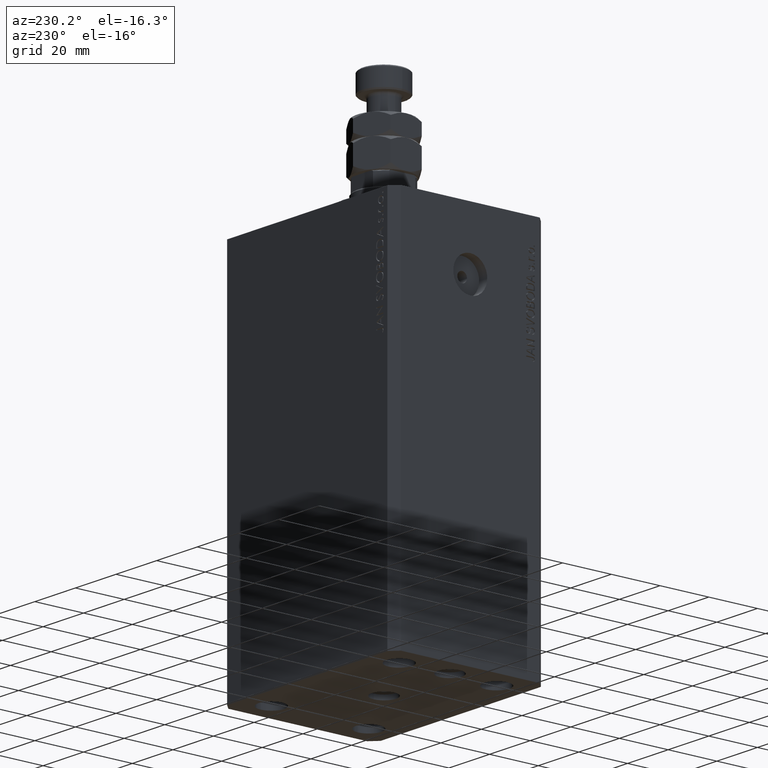
[diagram: clean part render]
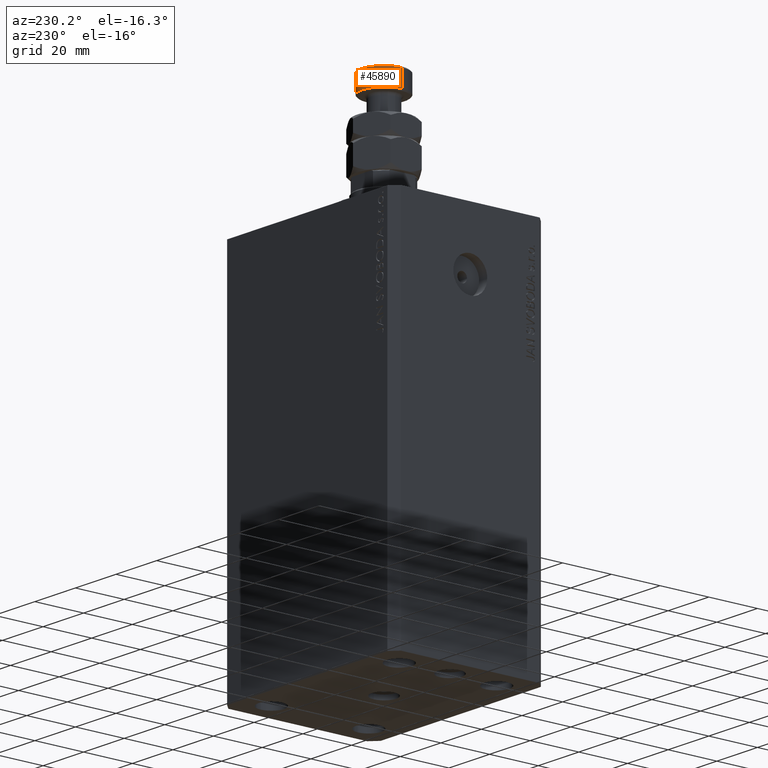
[diagram: same view with one face highlighted and labeled with its STEP entity id]
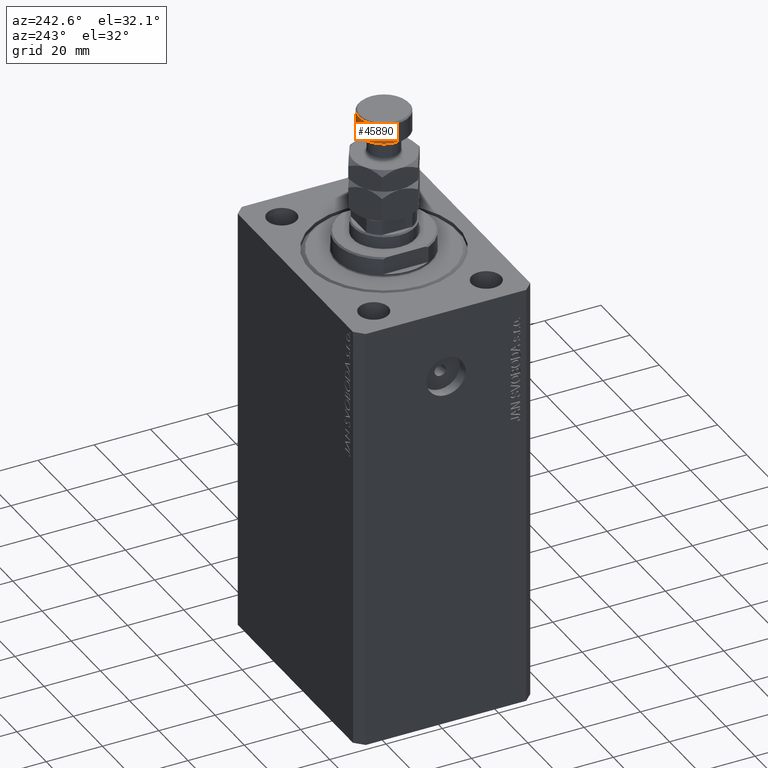
[diagram: same view with one face highlighted and labeled with its STEP entity id]
A machine part, auxiliary view. The second image highlights one B-rep face of the part: STEP entity #45890.
A second angle (auxiliary view) of the same face is appended — the face is thin or edge-on in the first view.
In plain terms, the highlighted cylindrical surface (edge-blend (fillet) strip) has radius 9 mm, axis along (-0, -0, -1).
Its self-contained STEP definition (entity closure, byte-faithful):
#638 = VECTOR ( 'NONE', #30961, 1000.000000000000000 ) ;
#3254 = CARTESIAN_POINT ( 'NONE',  ( -9.000000000000000000, 0.000000000000000000, 27.50000000000000000 ) ) ;
#4795 = CARTESIAN_POINT ( 'NONE',  ( 0.000000000000000000, 0.000000000000000000, 34.49999999999999289 ) ) ;
#4931 = EDGE_LOOP ( 'NONE', ( #14204, #45839, #8833, #17388 ) ) ;
#5157 = DIRECTION ( 'NONE',  ( -1.000000000000000000, 0.000000000000000000, 0.000000000000000000 ) ) ;
#5460 = CARTESIAN_POINT ( 'NONE',  ( -9.000000000000000000, 0.000000000000000000, 35.00000000000000000 ) ) ;
#7281 = CARTESIAN_POINT ( 'NONE',  ( 0.000000000000000000, 0.000000000000000000, 35.00000000000000000 ) ) ;
#8833 = ORIENTED_EDGE ( 'NONE', *, *, #24676, .T. ) ;
#8987 = DIRECTION ( 'NONE',  ( 1.000000000000000000, 0.000000000000000000, 0.000000000000000000 ) ) ;
#11670 = VECTOR ( 'NONE', #36604, 1000.000000000000000 ) ;
#13748 = DIRECTION ( 'NONE',  ( -0.000000000000000000, -0.000000000000000000, 1.000000000000000000 ) ) ;
#14204 = ORIENTED_EDGE ( 'NONE', *, *, #21790, .T. ) ;
#14709 = VERTEX_POINT ( 'NONE', #46182 ) ;
#14839 = AXIS2_PLACEMENT_3D ( 'NONE', #32015, #13748, #21248 ) ;
#15759 = EDGE_CURVE ( 'NONE', #31904, #20154, #43378, .T. ) ;
#16351 = CIRCLE ( 'NONE', #26028, 9.000000000000000000 ) ;
#17388 = ORIENTED_EDGE ( 'NONE', *, *, #35051, .F. ) ;
#20154 = VERTEX_POINT ( 'NONE', #21477 ) ;
#21248 = DIRECTION ( 'NONE',  ( 1.000000000000000000, 0.000000000000000000, 0.000000000000000000 ) ) ;
#21477 = CARTESIAN_POINT ( 'NONE',  ( 9.000000000000000000, 1.102182119232617714E-15, 27.50000000000000000 ) ) ;
#21790 = EDGE_CURVE ( 'NONE', #14709, #31904, #16351, .T. ) ;
#22308 = CARTESIAN_POINT ( 'NONE',  ( 9.000000000000000000, 1.102182119232617714E-15, 35.00000000000000000 ) ) ;
#24676 = EDGE_CURVE ( 'NONE', #20154, #30510, #35031, .T. ) ;
#26028 = AXIS2_PLACEMENT_3D ( 'NONE', #4795, #44787, #8987 ) ;
#26438 = DIRECTION ( 'NONE',  ( -0.000000000000000000, -0.000000000000000000, -1.000000000000000000 ) ) ;
#26738 = LINE ( 'NONE', #5460, #638 ) ;
#30510 = VERTEX_POINT ( 'NONE', #3254 ) ;
#30961 = DIRECTION ( 'NONE',  ( -0.000000000000000000, -0.000000000000000000, -1.000000000000000000 ) ) ;
#31904 = VERTEX_POINT ( 'NONE', #45957 ) ;
#32015 = CARTESIAN_POINT ( 'NONE',  ( 0.000000000000000000, 0.000000000000000000, 27.50000000000000000 ) ) ;
#35031 = CIRCLE ( 'NONE', #14839, 9.000000000000000000 ) ;
#35051 = EDGE_CURVE ( 'NONE', #14709, #30510, #26738, .T. ) ;
#35850 = FACE_OUTER_BOUND ( 'NONE', #4931, .T. ) ;
#36604 = DIRECTION ( 'NONE',  ( -0.000000000000000000, -0.000000000000000000, -1.000000000000000000 ) ) ;
#39355 = CYLINDRICAL_SURFACE ( 'NONE', #44133, 9.000000000000000000 ) ;
#43378 = LINE ( 'NONE', #22308, #11670 ) ;
#44133 = AXIS2_PLACEMENT_3D ( 'NONE', #7281, #26438, #5157 ) ;
#44787 = DIRECTION ( 'NONE',  ( 0.000000000000000000, 0.000000000000000000, -1.000000000000000000 ) ) ;
#45839 = ORIENTED_EDGE ( 'NONE', *, *, #15759, .T. ) ;
#45890 = ADVANCED_FACE ( 'NONE', ( #35850 ), #39355, .T. ) ;
#45957 = CARTESIAN_POINT ( 'NONE',  ( 9.000000000000000000, 1.102182119232617714E-15, 34.49999999999999289 ) ) ;
#46182 = CARTESIAN_POINT ( 'NONE',  ( -9.000000000000000000, 0.000000000000000000, 34.49999999999999289 ) ) ;